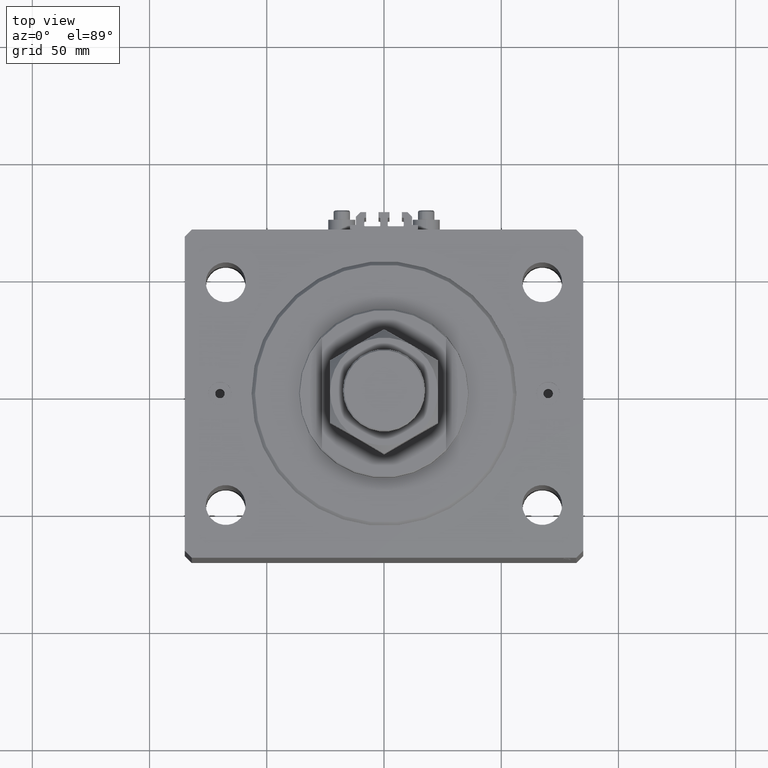
[diagram: clean part render]
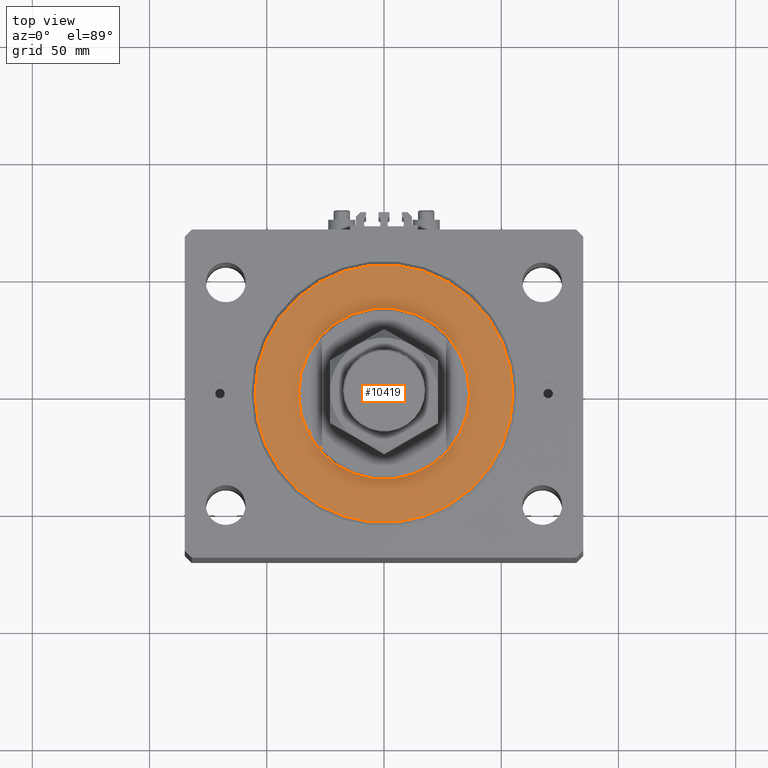
[diagram: same view with one face highlighted and labeled with its STEP entity id]
A machine part, top view. The second image highlights one B-rep face of the part: STEP entity #10419.
In plain terms, the highlighted planar face has unit normal (0, 0, -1).
Its self-contained STEP definition (entity closure, byte-faithful):
#1288 = CIRCLE ( 'NONE', #42410, 55.00000000000002132 ) ;
#3196 = DIRECTION ( 'NONE',  ( 1.000000000000000000, 0.000000000000000000, -0.000000000000000000 ) ) ;
#5607 = DIRECTION ( 'NONE',  ( 0.000000000000000000, 0.000000000000000000, 1.000000000000000000 ) ) ;
#5671 = ORIENTED_EDGE ( 'NONE', *, *, #37798, .T. ) ;
#5810 = CIRCLE ( 'NONE', #42206, 36.50000000000000000 ) ;
#6038 = DIRECTION ( 'NONE',  ( 1.000000000000000000, 0.000000000000000000, 0.000000000000000000 ) ) ;
#6324 = DIRECTION ( 'NONE',  ( -0.000000000000000000, -0.000000000000000000, -1.000000000000000000 ) ) ;
#7788 = CIRCLE ( 'NONE', #39405, 36.50000000000000000 ) ;
#10419 = ADVANCED_FACE ( 'NONE', ( #21556, #14351 ), #25998, .F. ) ;
#10869 = DIRECTION ( 'NONE',  ( 0.000000000000000000, 0.000000000000000000, 1.000000000000000000 ) ) ;
#10937 = EDGE_CURVE ( 'NONE', #42409, #31618, #1288, .T. ) ;
#13775 = CARTESIAN_POINT ( 'NONE',  ( 0.000000000000000000, 0.000000000000000000, 0.000000000000000000 ) ) ;
#14215 = CARTESIAN_POINT ( 'NONE',  ( -36.50000000000000000, 4.469960816887838430E-15, -2.168404344971008868E-16 ) ) ;
#14351 = FACE_OUTER_BOUND ( 'NONE', #31324, .T. ) ;
#15493 = EDGE_CURVE ( 'NONE', #22293, #36371, #5810, .T. ) ;
#16303 = DIRECTION ( 'NONE',  ( 1.000000000000000000, 0.000000000000000000, 0.000000000000000000 ) ) ;
#18097 = CARTESIAN_POINT ( 'NONE',  ( 55.00000000000002132, 0.000000000000000000, 0.000000000000000000 ) ) ;
#18557 = CARTESIAN_POINT ( 'NONE',  ( 0.000000000000000000, 0.000000000000000000, 0.000000000000000000 ) ) ;
#18831 = AXIS2_PLACEMENT_3D ( 'NONE', #13775, #6324, #40993 ) ;
#20308 = AXIS2_PLACEMENT_3D ( 'NONE', #18557, #10869, #3196 ) ;
#21556 = FACE_BOUND ( 'NONE', #22295, .T. ) ;
#22293 = VERTEX_POINT ( 'NONE', #14215 ) ;
#22295 = EDGE_LOOP ( 'NONE', ( #5671, #29281 ) ) ;
#24378 = CIRCLE ( 'NONE', #18831, 55.00000000000002132 ) ;
#25819 = ORIENTED_EDGE ( 'NONE', *, *, #36479, .T. ) ;
#25998 = PLANE ( 'NONE',  #20308 ) ;
#29281 = ORIENTED_EDGE ( 'NONE', *, *, #15493, .T. ) ;
#30434 = CARTESIAN_POINT ( 'NONE',  ( -55.00000000000002132, 6.827405905246496343E-15, 0.000000000000000000 ) ) ;
#31324 = EDGE_LOOP ( 'NONE', ( #35456, #25819 ) ) ;
#31618 = VERTEX_POINT ( 'NONE', #30434 ) ;
#32730 = DIRECTION ( 'NONE',  ( 0.000000000000000000, 0.000000000000000000, 1.000000000000000000 ) ) ;
#32773 = CARTESIAN_POINT ( 'NONE',  ( 0.000000000000000000, 0.000000000000000000, 0.000000000000000000 ) ) ;
#35080 = CARTESIAN_POINT ( 'NONE',  ( 0.000000000000000000, 0.000000000000000000, 0.000000000000000000 ) ) ;
#35456 = ORIENTED_EDGE ( 'NONE', *, *, #10937, .T. ) ;
#36371 = VERTEX_POINT ( 'NONE', #39030 ) ;
#36479 = EDGE_CURVE ( 'NONE', #31618, #42409, #24378, .T. ) ;
#37798 = EDGE_CURVE ( 'NONE', #36371, #22293, #7788, .T. ) ;
#39030 = CARTESIAN_POINT ( 'NONE',  ( 36.50000000000000000, 0.000000000000000000, -2.168404344971008868E-16 ) ) ;
#39405 = AXIS2_PLACEMENT_3D ( 'NONE', #43396, #32730, #47826 ) ;
#39966 = DIRECTION ( 'NONE',  ( -0.000000000000000000, -0.000000000000000000, -1.000000000000000000 ) ) ;
#40993 = DIRECTION ( 'NONE',  ( 1.000000000000000000, 0.000000000000000000, 0.000000000000000000 ) ) ;
#42206 = AXIS2_PLACEMENT_3D ( 'NONE', #35080, #5607, #16303 ) ;
#42409 = VERTEX_POINT ( 'NONE', #18097 ) ;
#42410 = AXIS2_PLACEMENT_3D ( 'NONE', #32773, #39966, #6038 ) ;
#43396 = CARTESIAN_POINT ( 'NONE',  ( 0.000000000000000000, 0.000000000000000000, 0.000000000000000000 ) ) ;
#47826 = DIRECTION ( 'NONE',  ( 1.000000000000000000, 0.000000000000000000, 0.000000000000000000 ) ) ;